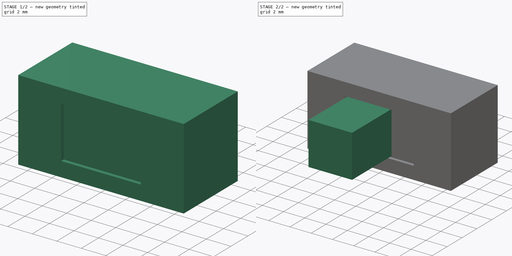
[diagram: build sequence overview — one tinted view per stage of 2, left to right]
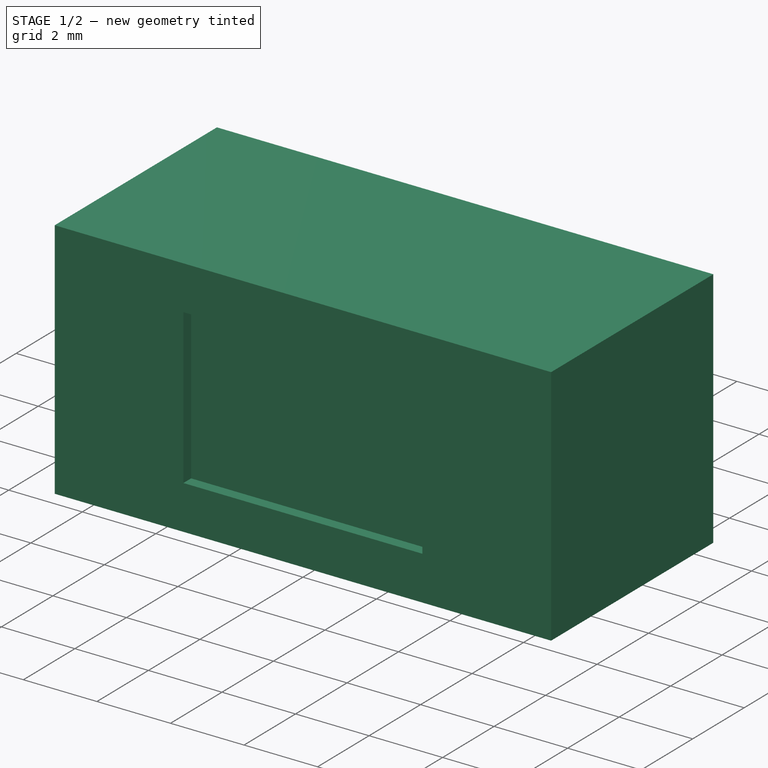
[diagram: stage 1 of 2 — iso view after this stage's code; geometry added in this stage tinted green]
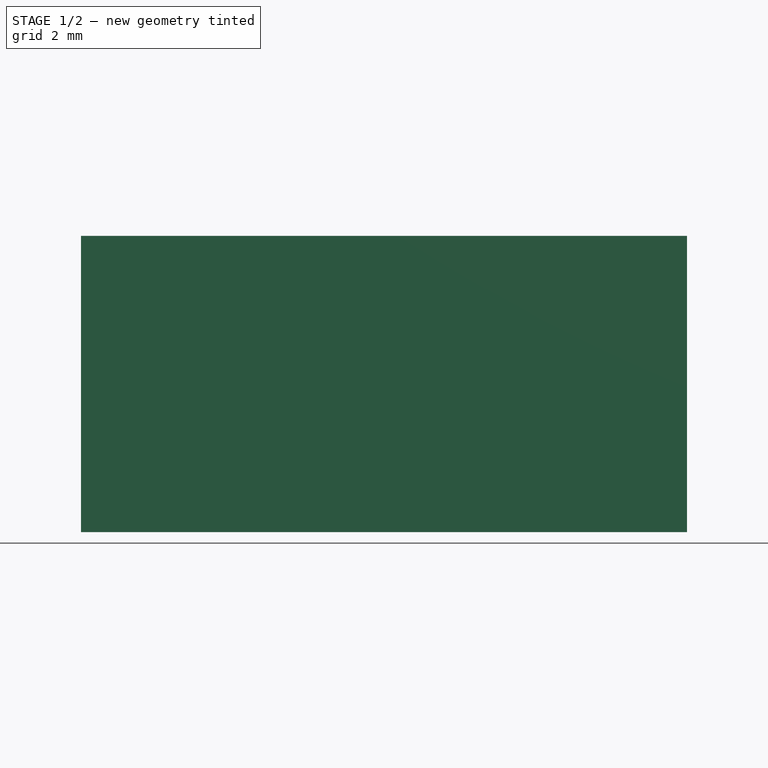
[diagram: stage 1 of 2 — front view after this stage's code; geometry added in this stage tinted green]
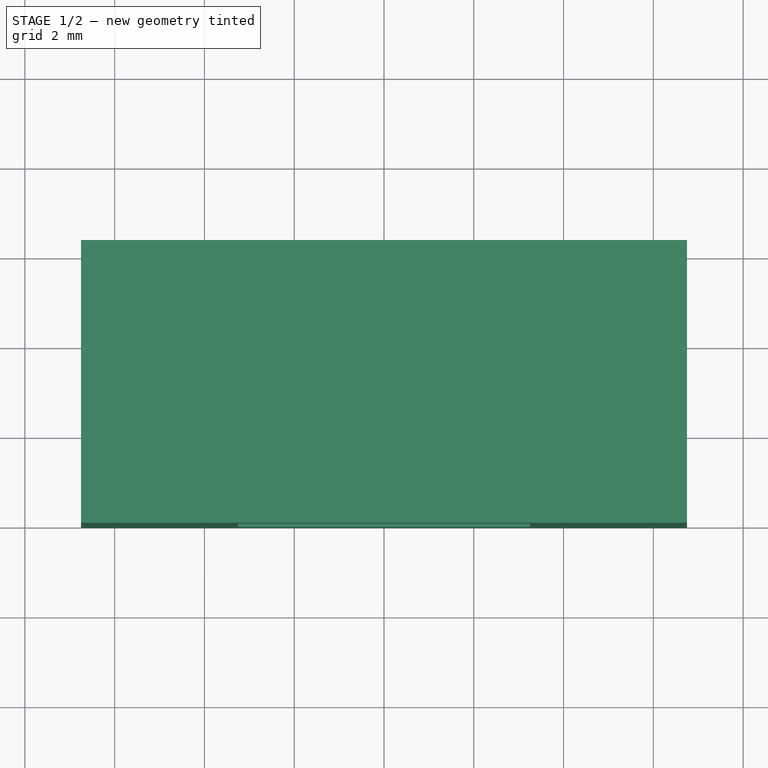
[diagram: stage 1 of 2 — top view after this stage's code; geometry added in this stage tinted green]
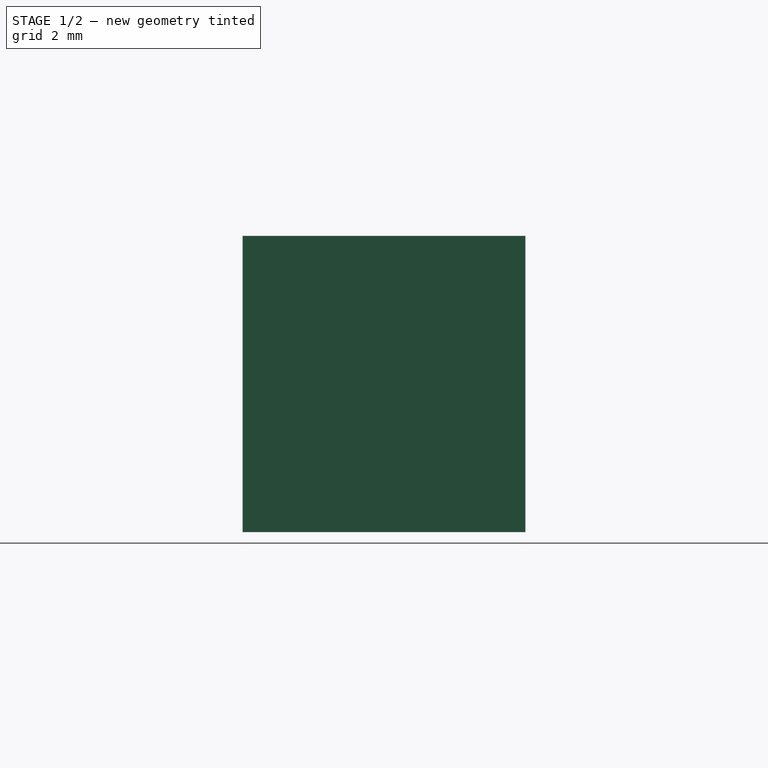
[diagram: stage 1 of 2 — right view after this stage's code; geometry added in this stage tinted green]
FCSTD DOCUMENT  (FreeCAD 0.18R16146 (Git))
Label: SS-12D11G5R_3pin
License: All rights reserved
LicenseURL: http://en.wikipedia.org/wiki/All_rights_reserved
objects: Sketcher::SketchObject×3, PartDesign::Pad×2, PartDesign::Pocket×1, PartDesign::Body×1
note: 10 computed .brp shape members not serialized (recipe doc carries the construction recipe); baked Part::Feature solids carry a one-line shape summary decoded from their .brp

FEATURE [Sketcher::SketchObject] Sketch
  MapMode = 5
  Support = -> [XY_Plane]
  sketch-geometry (4):
    g0: LineSegment StartX=-6.75 StartY=6.3 StartZ=0 EndX=6.75 EndY=6.3 EndZ=0
    g1: LineSegment StartX=6.75 StartY=6.3 StartZ=0 EndX=6.75 EndY=0 EndZ=0
    g2: LineSegment StartX=6.75 StartY=0 StartZ=0 EndX=-6.75 EndY=0 EndZ=0
    g3: LineSegment StartX=-6.75 StartY=0 StartZ=0 EndX=-6.75 EndY=6.3 EndZ=0
  constraints (11):
    c: Coincident(g0,g1)
    c: Coincident(g1,g2)
    c: Coincident(g2,g3)
    c: Coincident(g3,g0)
    c: Horizontal(g0)
    c: Horizontal(g2)
    c: Vertical(g1)
    c: Vertical(g3)
    c: DistanceX(g0,g0) = 13.5
    c: Symmetric(g2,g1,g-1)
    c: DistanceY(g1,g1) = 6.3
FEATURE [PartDesign::Pad] Pad
  Length = 6.6
  Length2 = 100
  Profile = -> Sketch
  Type = 0
FEATURE [Sketcher::SketchObject] Sketch001
  MapMode = 5
  Placement = pos=(0,0,0) rot=(1,0,0;1.5708rad)
  Support = -> [Pad]
  sketch-geometry (5):
    g0: LineSegment StartX=-3.25 StartY=5.4 StartZ=0 EndX=3.25 EndY=5.4 EndZ=0
    g1: LineSegment StartX=3.25 StartY=5.4 StartZ=0 EndX=3.25 EndY=1.2 EndZ=0
    g2: LineSegment StartX=3.25 StartY=1.2 StartZ=0 EndX=-3.25 EndY=1.2 EndZ=0
    g3: LineSegment StartX=-3.25 StartY=1.2 StartZ=0 EndX=-3.25 EndY=5.4 EndZ=0
    g4: GeomPoint X=0 Y=3.3 Z=0
  constraints (13):
    c: Coincident(g0,g1)
    c: Coincident(g1,g2)
    c: Coincident(g2,g3)
    c: Coincident(g3,g0)
    c: Horizontal(g0)
    c: Horizontal(g2)
    c: Vertical(g1)
    c: Vertical(g3)
    c: DistanceX(g0,g0) = 6.5
    c: PointOnObject(g4,g-2)
    c: DistanceY(g1,g1) = 4.2
    c: Symmetric(g0,g1,g4)
    c: DistanceY(g-1,g4) = 3.3
FEATURE [PartDesign::Pocket] Pocket
  BaseFeature = -> Pad
  Length = 0.3
  Length2 = 100
  Profile = -> Sketch001
  Type = 0
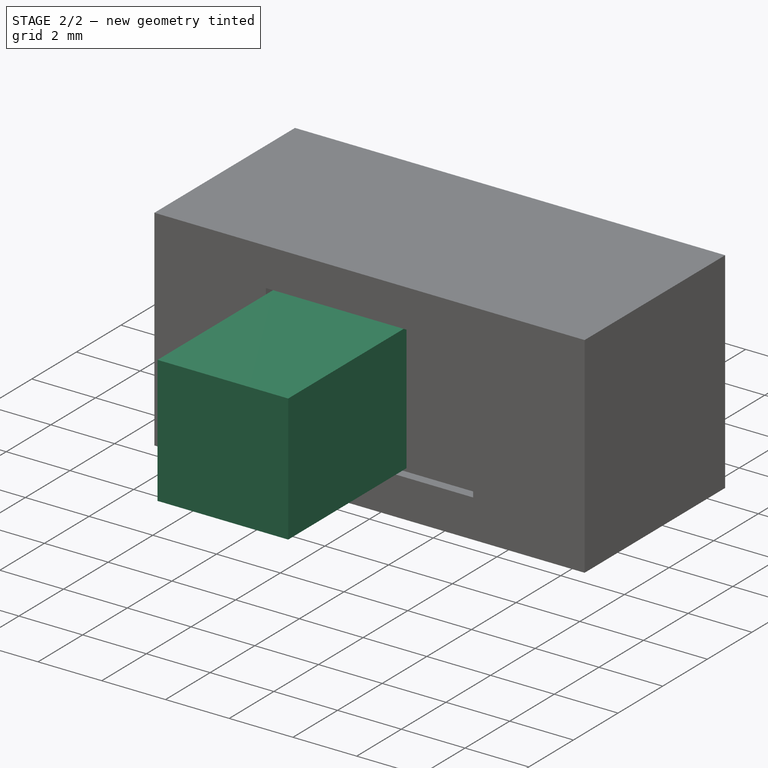
[diagram: stage 2 of 2 — iso view after this stage's code; geometry added in this stage tinted green]
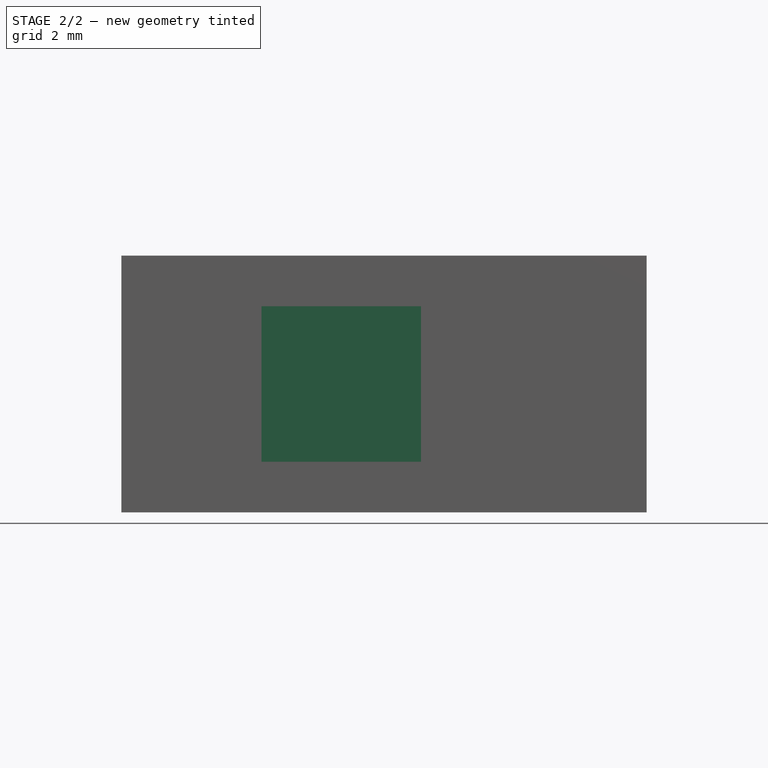
[diagram: stage 2 of 2 — front view after this stage's code; geometry added in this stage tinted green]
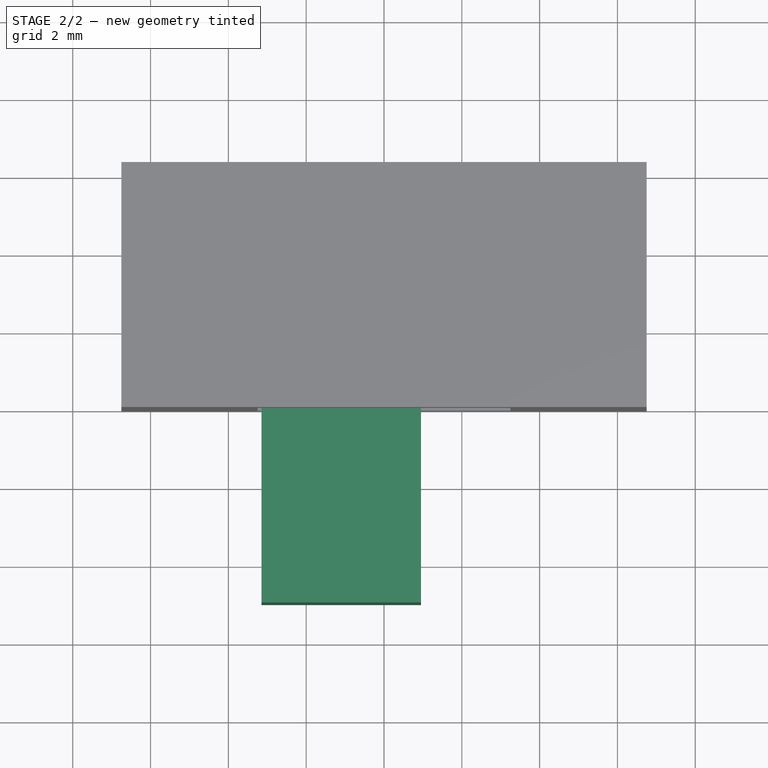
[diagram: stage 2 of 2 — top view after this stage's code; geometry added in this stage tinted green]
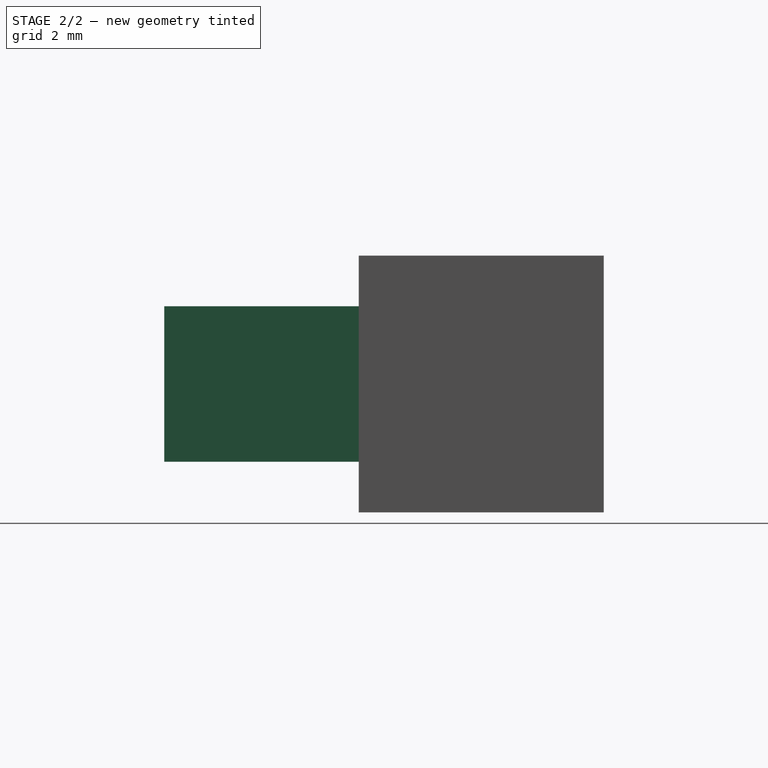
[diagram: stage 2 of 2 — right view after this stage's code; geometry added in this stage tinted green]
FEATURE [Sketcher::SketchObject] Sketch002
  MapMode = 5
  Placement = pos=(0,0.3,-1e-16) rot=(1,0,0;1.5708rad)
  Support = -> [Pocket]
  sketch-geometry (5):
    g0: LineSegment StartX=-3.15 StartY=5.3 StartZ=0 EndX=0.95 EndY=5.3 EndZ=0
    g1: LineSegment StartX=0.95 StartY=5.3 StartZ=0 EndX=0.95 EndY=1.3 EndZ=0
    g2: LineSegment StartX=0.95 StartY=1.3 StartZ=0 EndX=-3.15 EndY=1.3 EndZ=0
    g3: LineSegment StartX=-3.15 StartY=1.3 StartZ=0 EndX=-3.15 EndY=5.3 EndZ=0
    g4: GeomPoint X=-1.1 Y=3.3 Z=0
  constraints (13):
    c: Coincident(g0,g1)
    c: Coincident(g1,g2)
    c: Coincident(g2,g3)
    c: Coincident(g3,g0)
    c: Horizontal(g0)
    c: Horizontal(g2)
    c: Vertical(g1)
    c: Vertical(g3)
    c: DistanceX(g0,g0) = 4.1
    c: DistanceY(g1,g1) = 4
    c: Symmetric(g0,g1,g4)
    c: DistanceY(g-1,g4) = 3.3
    c: DistanceX(g4,g-1) = 1.1
FEATURE [PartDesign::Pad] Pad001
  BaseFeature = -> Pocket
  Length = 5.3
  Length2 = 100
  Profile = -> Sketch002
  Type = 0
FEATURE [PartDesign::Body] Body
  Group = -> [Sketch,Pad,Sketch001,Pocket,Sketch002,Pad001]
  Origin = -> Origin
  Tip = -> Pad001
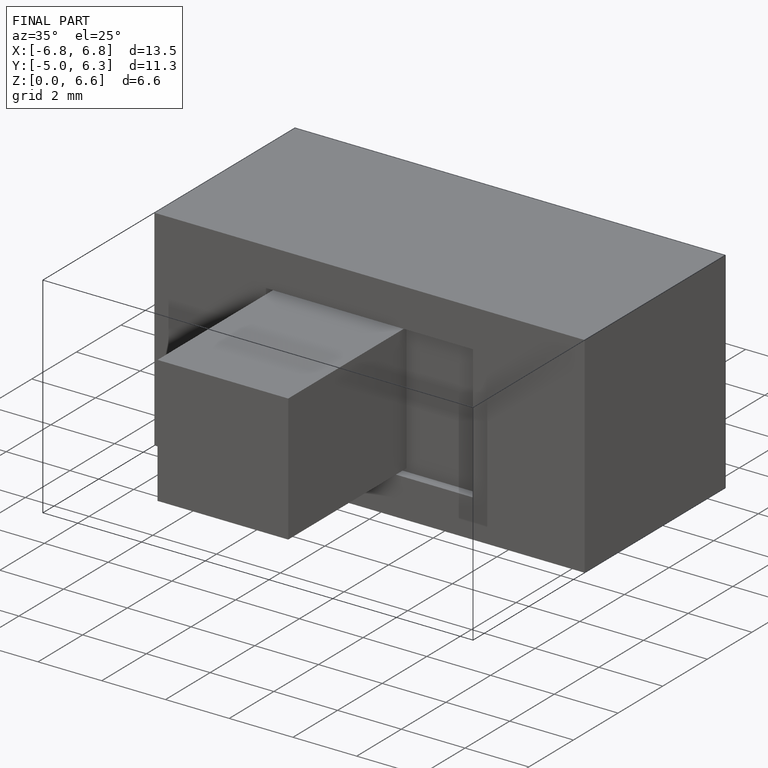
[diagram: finished part — iso view with bounding-box wireframe]
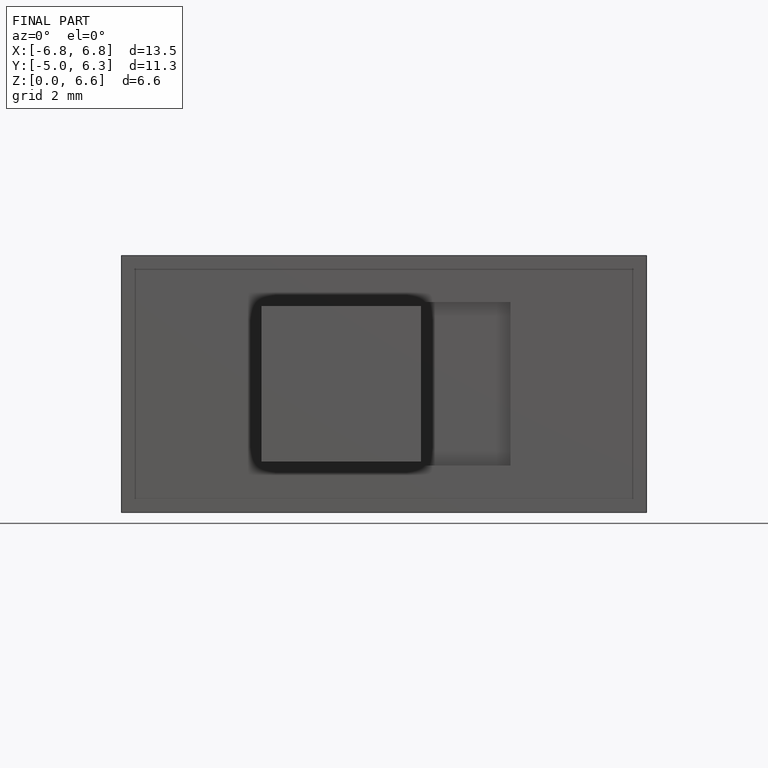
[diagram: finished part — front view with bounding-box wireframe]
